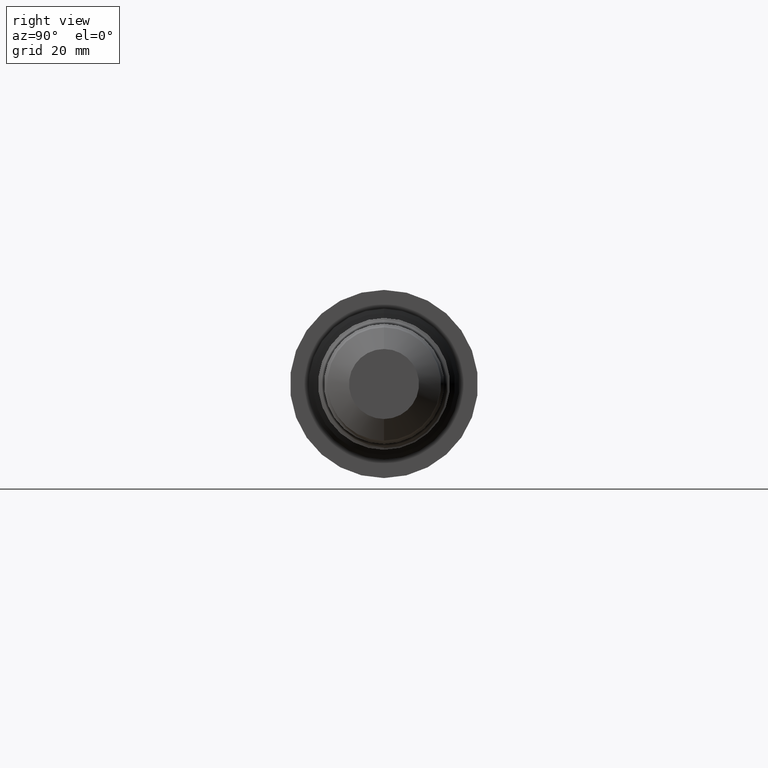
[diagram: clean part render]
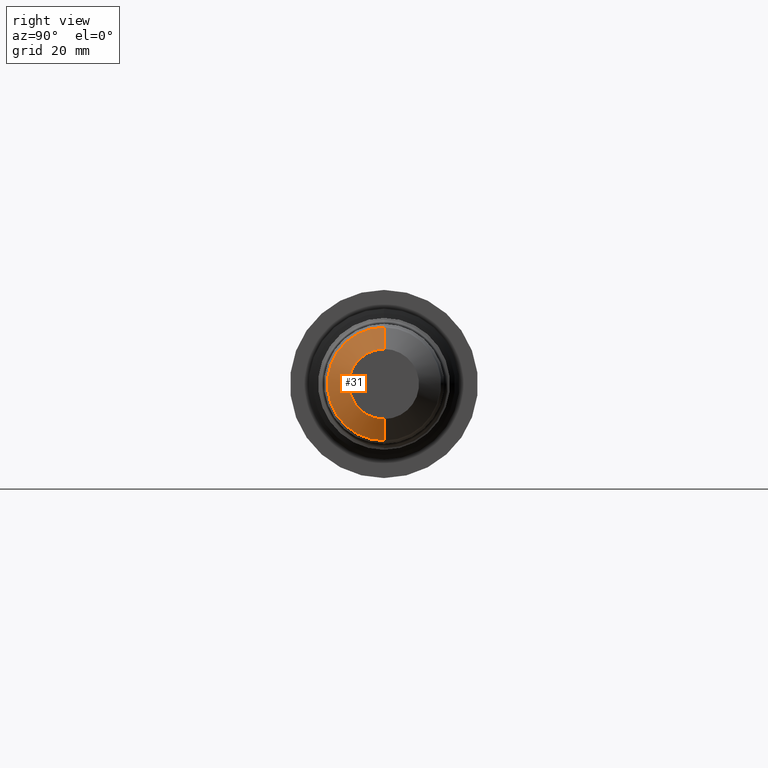
[diagram: same view with one face highlighted and labeled with its STEP entity id]
A machine part, right view. The second image highlights one B-rep face of the part: STEP entity #31.
In plain terms, the highlighted conical surface has half-angle 61 deg.
Its self-contained STEP definition (entity closure, byte-faithful):
#14 = EDGE_LOOP ( 'NONE', ( #623, #467, #127, #663 ) ) ;
#16 = EDGE_CURVE ( 'NONE', #498, #197, #157, .T. ) ;
#30 = EDGE_CURVE ( 'NONE', #197, #34, #539, .T. ) ;
#31 = ADVANCED_FACE ( 'NONE', ( #889 ), #116, .T. ) ;
#34 = VERTEX_POINT ( 'NONE', #536 ) ;
#69 = CARTESIAN_POINT ( 'NONE',  ( 6.250000000000000000, 0.0000000000000000000, 0.3209547469201429193 ) ) ;
#114 = CARTESIAN_POINT ( 'NONE',  ( 6.250000000000000000, 0.0000000000000000000, 0.0000000000000000000 ) ) ;
#115 = VECTOR ( 'NONE', #196, 39.37007874015748143 ) ;
#116 = CONICAL_SURFACE ( 'NONE', #948, 0.3209547469201429193, 1.064650843716543616 ) ;
#127 = ORIENTED_EDGE ( 'NONE', *, *, #30, .T. ) ;
#131 = DIRECTION ( 'NONE',  ( 0.0000000000000000000, 0.0000000000000000000, 1.000000000000000000 ) ) ;
#157 = CIRCLE ( 'NONE', #897, 0.3209547469201429193 ) ;
#176 = CARTESIAN_POINT ( 'NONE',  ( 6.140000000000000568, 0.0000000000000000000, 0.0000000000000000000 ) ) ;
#196 = DIRECTION ( 'NONE',  ( -0.4848096202463347826, 1.071100224819458088E-16, -0.8746197071393970734 ) ) ;
#197 = VERTEX_POINT ( 'NONE', #343 ) ;
#199 = DIRECTION ( 'NONE',  ( 0.0000000000000000000, 0.0000000000000000000, 1.000000000000000000 ) ) ;
#224 = AXIS2_PLACEMENT_3D ( 'NONE', #176, #276, #342 ) ;
#276 = DIRECTION ( 'NONE',  ( -1.000000000000000000, -0.0000000000000000000, -0.0000000000000000000 ) ) ;
#288 = CARTESIAN_POINT ( 'NONE',  ( 6.250000000000000000, 3.930562034869018120E-17, -0.3209547469201429193 ) ) ;
#307 = LINE ( 'NONE', #288, #115 ) ;
#330 = VECTOR ( 'NONE', #931, 39.37007874015748143 ) ;
#342 = DIRECTION ( 'NONE',  ( 0.0000000000000000000, 0.0000000000000000000, 1.000000000000000000 ) ) ;
#343 = CARTESIAN_POINT ( 'NONE',  ( 6.250000000000000000, 0.0000000000000000000, 0.3209547469201429193 ) ) ;
#424 = DIRECTION ( 'NONE',  ( -1.000000000000000000, -0.0000000000000000000, -0.0000000000000000000 ) ) ;
#457 = CARTESIAN_POINT ( 'NONE',  ( 6.140000000000000568, 6.360815474771353018E-17, -0.5194000000000000838 ) ) ;
#467 = ORIENTED_EDGE ( 'NONE', *, *, #16, .T. ) ;
#498 = VERTEX_POINT ( 'NONE', #757 ) ;
#514 = EDGE_CURVE ( 'NONE', #498, #910, #307, .T. ) ;
#536 = CARTESIAN_POINT ( 'NONE',  ( 6.140000000000000568, 0.0000000000000000000, 0.5194000000000000838 ) ) ;
#539 = LINE ( 'NONE', #69, #330 ) ;
#623 = ORIENTED_EDGE ( 'NONE', *, *, #514, .F. ) ;
#640 = DIRECTION ( 'NONE',  ( -1.000000000000000000, -0.0000000000000000000, -0.0000000000000000000 ) ) ;
#663 = ORIENTED_EDGE ( 'NONE', *, *, #702, .F. ) ;
#687 = CARTESIAN_POINT ( 'NONE',  ( 6.250000000000000000, 0.0000000000000000000, 0.0000000000000000000 ) ) ;
#702 = EDGE_CURVE ( 'NONE', #910, #34, #765, .T. ) ;
#757 = CARTESIAN_POINT ( 'NONE',  ( 6.250000000000000000, 5.145688754820185569E-17, -0.3209547469201429193 ) ) ;
#765 = CIRCLE ( 'NONE', #224, 0.5194000000000000838 ) ;
#889 = FACE_OUTER_BOUND ( 'NONE', #14, .T. ) ;
#897 = AXIS2_PLACEMENT_3D ( 'NONE', #114, #640, #199 ) ;
#910 = VERTEX_POINT ( 'NONE', #457 ) ;
#931 = DIRECTION ( 'NONE',  ( -0.4848096202463347826, 0.0000000000000000000, 0.8746197071393970734 ) ) ;
#948 = AXIS2_PLACEMENT_3D ( 'NONE', #687, #424, #131 ) ;